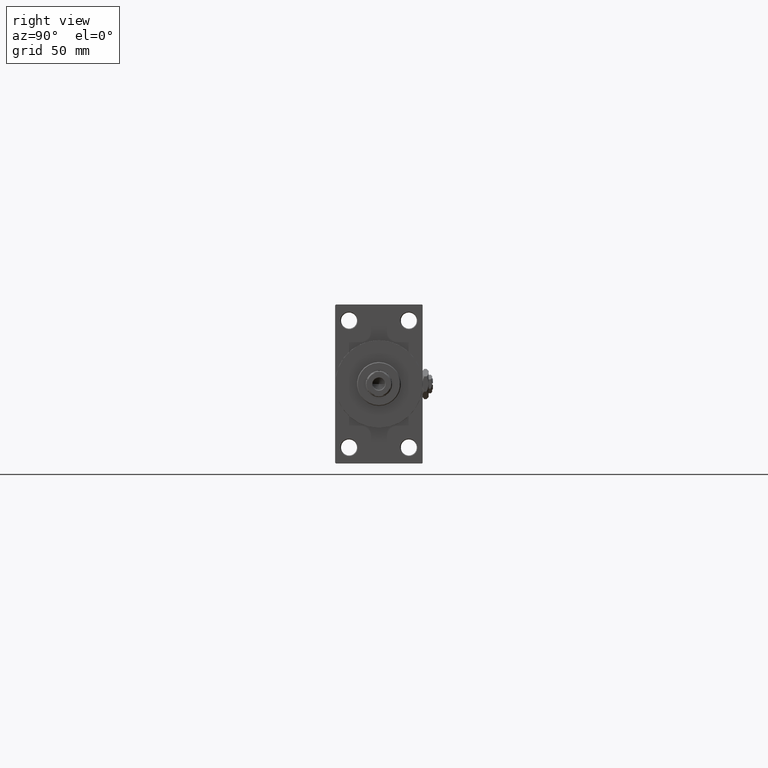
[diagram: clean part render]
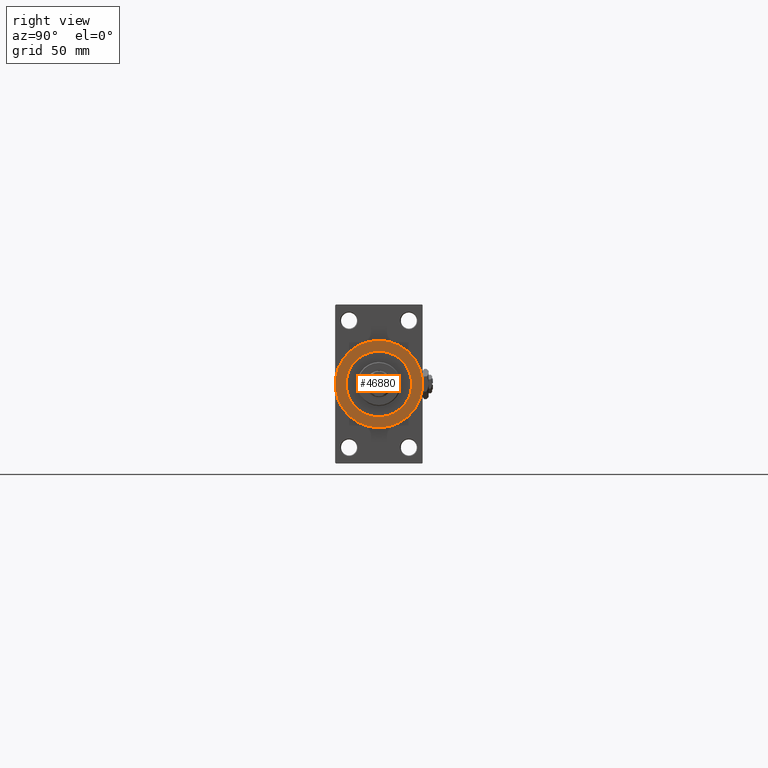
[diagram: same view with one face highlighted and labeled with its STEP entity id]
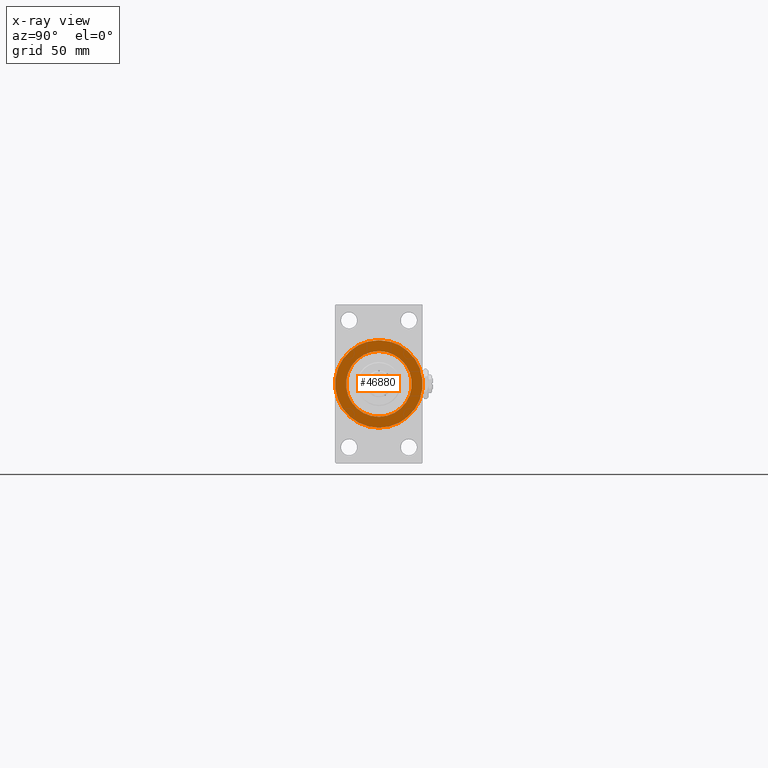
[diagram: x-ray of the same camera — body ghosted, the highlighted face saturated]
A machine part, right view. The second image highlights one B-rep face of the part: STEP entity #46880.
The next image is the same camera in x-ray: the body ghosted, the highlighted face saturated — about 0% of this face is hidden behind the body in this view.
In plain terms, the highlighted planar face has unit normal (1, 0, 0).
Its self-contained STEP definition (entity closure, byte-faithful):
#349 = DIRECTION ( 'NONE',  ( 0.000000000000000000, 0.000000000000000000, -1.000000000000000000 ) ) ;
#380 = AXIS2_PLACEMENT_3D ( 'NONE', #33657, #33910, #42582 ) ;
#3082 = DIRECTION ( 'NONE',  ( 1.000000000000000000, 0.000000000000000000, 0.000000000000000000 ) ) ;
#3239 = ORIENTED_EDGE ( 'NONE', *, *, #40543, .F. ) ;
#3283 = DIRECTION ( 'NONE',  ( 1.000000000000000000, 0.000000000000000000, 0.000000000000000000 ) ) ;
#3611 = DIRECTION ( 'NONE',  ( 0.000000000000000000, 0.000000000000000000, -1.000000000000000000 ) ) ;
#5049 = ORIENTED_EDGE ( 'NONE', *, *, #29865, .T. ) ;
#7193 = EDGE_CURVE ( 'NONE', #28021, #45464, #25823, .T. ) ;
#7596 = DIRECTION ( 'NONE',  ( 1.000000000000000000, 0.000000000000000000, 0.000000000000000000 ) ) ;
#8811 = EDGE_CURVE ( 'NONE', #18275, #39353, #30712, .T. ) ;
#9810 = CARTESIAN_POINT ( 'NONE',  ( 447.9999999999999432, 0.000000000000000000, 0.000000000000000000 ) ) ;
#10311 = DIRECTION ( 'NONE',  ( 0.000000000000000000, 0.000000000000000000, -1.000000000000000000 ) ) ;
#11885 = CARTESIAN_POINT ( 'NONE',  ( 447.9999999999999432, 3.673940397442059178E-15, -30.00000000000000000 ) ) ;
#13291 = ORIENTED_EDGE ( 'NONE', *, *, #7193, .F. ) ;
#13874 = AXIS2_PLACEMENT_3D ( 'NONE', #19526, #14795, #349 ) ;
#14252 = DIRECTION ( 'NONE',  ( 0.000000000000000000, 0.000000000000000000, -1.000000000000000000 ) ) ;
#14494 = CARTESIAN_POINT ( 'NONE',  ( 447.9999999999999432, 0.000000000000000000, 0.000000000000000000 ) ) ;
#14795 = DIRECTION ( 'NONE',  ( 1.000000000000000000, 0.000000000000000000, 0.000000000000000000 ) ) ;
#15586 = AXIS2_PLACEMENT_3D ( 'NONE', #14494, #3283, #14252 ) ;
#17427 = CARTESIAN_POINT ( 'NONE',  ( 447.9999999999999432, 0.000000000000000000, -22.50000000000000355 ) ) ;
#18275 = VERTEX_POINT ( 'NONE', #34115 ) ;
#19526 = CARTESIAN_POINT ( 'NONE',  ( 447.9999999999999432, 0.000000000000000000, 0.000000000000000000 ) ) ;
#21760 = EDGE_LOOP ( 'NONE', ( #13291, #3239 ) ) ;
#21817 = FACE_BOUND ( 'NONE', #21760, .T. ) ;
#25823 = CIRCLE ( 'NONE', #380, 22.50000000000000355 ) ;
#26760 = PLANE ( 'NONE',  #31718 ) ;
#28021 = VERTEX_POINT ( 'NONE', #17427 ) ;
#28209 = CIRCLE ( 'NONE', #13874, 30.00000000000000000 ) ;
#29865 = EDGE_CURVE ( 'NONE', #39353, #18275, #28209, .T. ) ;
#30712 = CIRCLE ( 'NONE', #15586, 30.00000000000000000 ) ;
#31030 = EDGE_LOOP ( 'NONE', ( #42514, #5049 ) ) ;
#31718 = AXIS2_PLACEMENT_3D ( 'NONE', #45274, #7596, #3611 ) ;
#33657 = CARTESIAN_POINT ( 'NONE',  ( 447.9999999999999432, 0.000000000000000000, 0.000000000000000000 ) ) ;
#33910 = DIRECTION ( 'NONE',  ( 1.000000000000000000, 0.000000000000000000, 0.000000000000000000 ) ) ;
#34115 = CARTESIAN_POINT ( 'NONE',  ( 447.9999999999999432, 0.000000000000000000, 30.00000000000000000 ) ) ;
#34799 = AXIS2_PLACEMENT_3D ( 'NONE', #9810, #3082, #10311 ) ;
#36041 = CARTESIAN_POINT ( 'NONE',  ( 447.9999999999999432, 2.755455298081545172E-15, 22.50000000000000355 ) ) ;
#39353 = VERTEX_POINT ( 'NONE', #11885 ) ;
#40543 = EDGE_CURVE ( 'NONE', #45464, #28021, #48394, .T. ) ;
#41279 = FACE_OUTER_BOUND ( 'NONE', #31030, .T. ) ;
#42514 = ORIENTED_EDGE ( 'NONE', *, *, #8811, .T. ) ;
#42582 = DIRECTION ( 'NONE',  ( 0.000000000000000000, 0.000000000000000000, -1.000000000000000000 ) ) ;
#45274 = CARTESIAN_POINT ( 'NONE',  ( 447.9999999999999432, 0.000000000000000000, 0.000000000000000000 ) ) ;
#45464 = VERTEX_POINT ( 'NONE', #36041 ) ;
#46880 = ADVANCED_FACE ( 'NONE', ( #21817, #41279 ), #26760, .T. ) ;
#48394 = CIRCLE ( 'NONE', #34799, 22.50000000000000355 ) ;